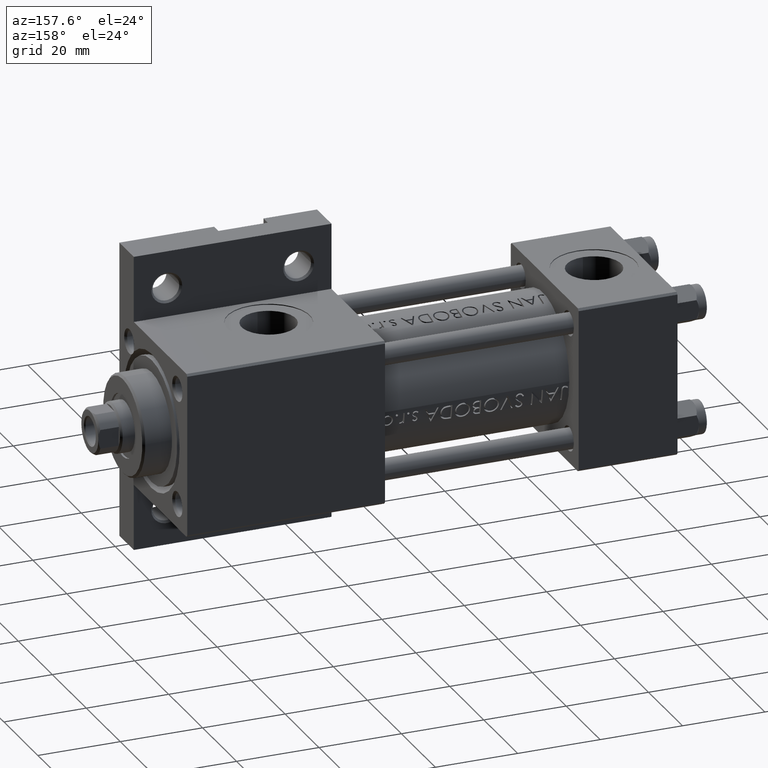
[diagram: clean part render]
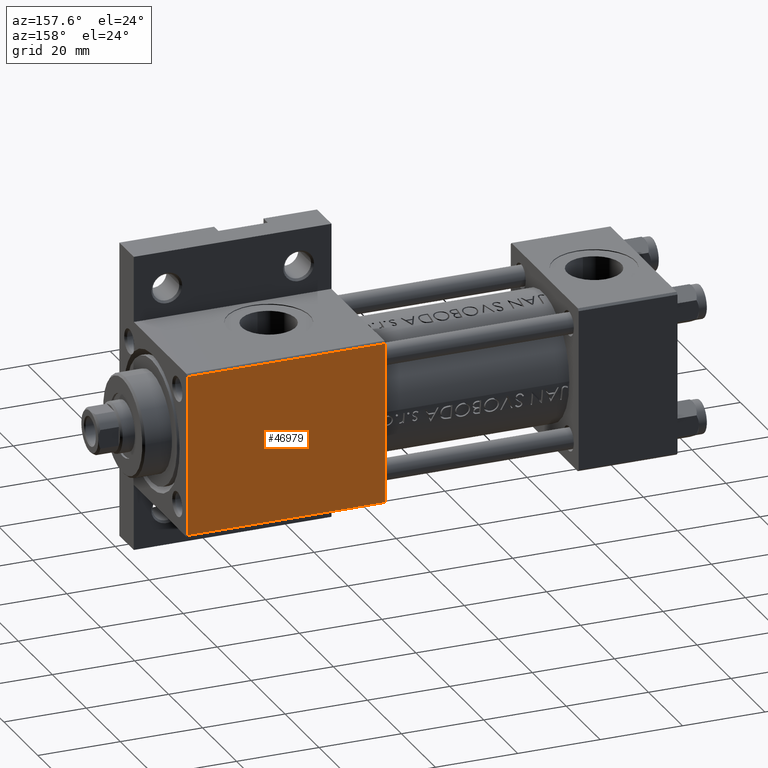
[diagram: same view with one face highlighted and labeled with its STEP entity id]
A machine part, auxiliary view. The second image highlights one B-rep face of the part: STEP entity #46979.
In plain terms, the highlighted planar face has unit normal (0, -1, -0).
Its self-contained STEP definition (entity closure, byte-faithful):
#1756 = ORIENTED_EDGE ( 'NONE', *, *, #11876, .T. ) ;
#2917 = FACE_OUTER_BOUND ( 'NONE', #37967, .T. ) ;
#3923 = VERTEX_POINT ( 'NONE', #36272 ) ;
#6163 = DIRECTION ( 'NONE',  ( 0.000000000000000000, -1.000000000000000000, -8.673617379884035472E-17 ) ) ;
#7753 = DIRECTION ( 'NONE',  ( 0.000000000000000000, -1.000000000000000000, -8.673617379884035472E-17 ) ) ;
#8909 = VECTOR ( 'NONE', #6163, 1000.000000000000000 ) ;
#10381 = EDGE_CURVE ( 'NONE', #11260, #3923, #45663, .T. ) ;
#10393 = PLANE ( 'NONE',  #36197 ) ;
#10412 = CARTESIAN_POINT ( 'NONE',  ( 119.0000000000000142, 19.49999999999999645, 20.00000000000000000 ) ) ;
#11260 = VERTEX_POINT ( 'NONE', #10412 ) ;
#11705 = CARTESIAN_POINT ( 'NONE',  ( 119.0000000000000142, -19.50000000000003197, 19.99999999999999645 ) ) ;
#11876 = EDGE_CURVE ( 'NONE', #17854, #3923, #27165, .T. ) ;
#13624 = CARTESIAN_POINT ( 'NONE',  ( 71.00000000000001421, 19.99999999999999645, 20.00000000000000000 ) ) ;
#14246 = LINE ( 'NONE', #40460, #20895 ) ;
#14344 = VECTOR ( 'NONE', #22455, 1000.000000000000000 ) ;
#15883 = EDGE_CURVE ( 'NONE', #47737, #17854, #32605, .T. ) ;
#17854 = VERTEX_POINT ( 'NONE', #48966 ) ;
#17989 = DIRECTION ( 'NONE',  ( -1.000000000000000000, 0.000000000000000000, 0.000000000000000000 ) ) ;
#18302 = VECTOR ( 'NONE', #7753, 1000.000000000000000 ) ;
#20895 = VECTOR ( 'NONE', #17989, 1000.000000000000000 ) ;
#22455 = DIRECTION ( 'NONE',  ( 1.000000000000000000, 0.000000000000000000, 0.000000000000000000 ) ) ;
#22628 = CARTESIAN_POINT ( 'NONE',  ( 71.00000000000001421, 19.49999999999999645, 20.00000000000000000 ) ) ;
#25368 = ORIENTED_EDGE ( 'NONE', *, *, #10381, .F. ) ;
#27165 = LINE ( 'NONE', #11705, #14344 ) ;
#28311 = EDGE_CURVE ( 'NONE', #11260, #47737, #14246, .T. ) ;
#30103 = CARTESIAN_POINT ( 'NONE',  ( 119.0000000000000142, 19.99999999999999645, 20.00000000000000000 ) ) ;
#32605 = LINE ( 'NONE', #13624, #8909 ) ;
#34606 = ORIENTED_EDGE ( 'NONE', *, *, #15883, .T. ) ;
#36197 = AXIS2_PLACEMENT_3D ( 'NONE', #30103, #40830, #45067 ) ;
#36272 = CARTESIAN_POINT ( 'NONE',  ( 119.0000000000000142, -19.50000000000003197, 19.99999999999999645 ) ) ;
#37967 = EDGE_LOOP ( 'NONE', ( #25368, #43918, #34606, #1756 ) ) ;
#38174 = CARTESIAN_POINT ( 'NONE',  ( 119.0000000000000142, 19.99999999999999645, 20.00000000000000000 ) ) ;
#40460 = CARTESIAN_POINT ( 'NONE',  ( 71.00000000000001421, 19.49999999999999645, 20.00000000000000000 ) ) ;
#40830 = DIRECTION ( 'NONE',  ( 0.000000000000000000, 8.673617379884034239E-17, -1.000000000000000000 ) ) ;
#43918 = ORIENTED_EDGE ( 'NONE', *, *, #28311, .T. ) ;
#45067 = DIRECTION ( 'NONE',  ( 0.000000000000000000, 1.000000000000000000, 8.673617379884034239E-17 ) ) ;
#45663 = LINE ( 'NONE', #38174, #18302 ) ;
#46979 = ADVANCED_FACE ( 'NONE', ( #2917 ), #10393, .F. ) ;
#47737 = VERTEX_POINT ( 'NONE', #22628 ) ;
#48966 = CARTESIAN_POINT ( 'NONE',  ( 71.00000000000001421, -19.50000000000003197, 19.99999999999999645 ) ) ;